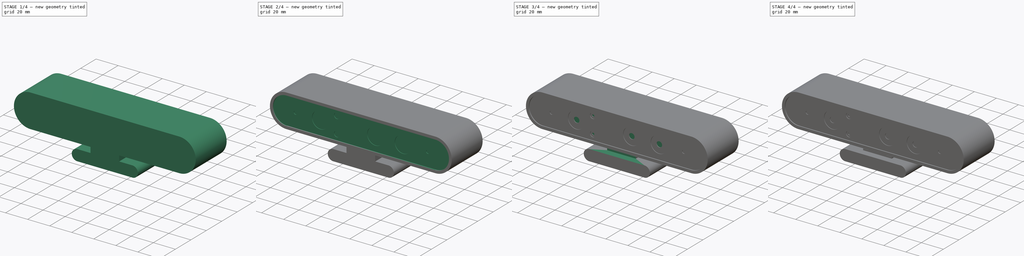
[diagram: build sequence overview — one tinted view per stage of 4, left to right]
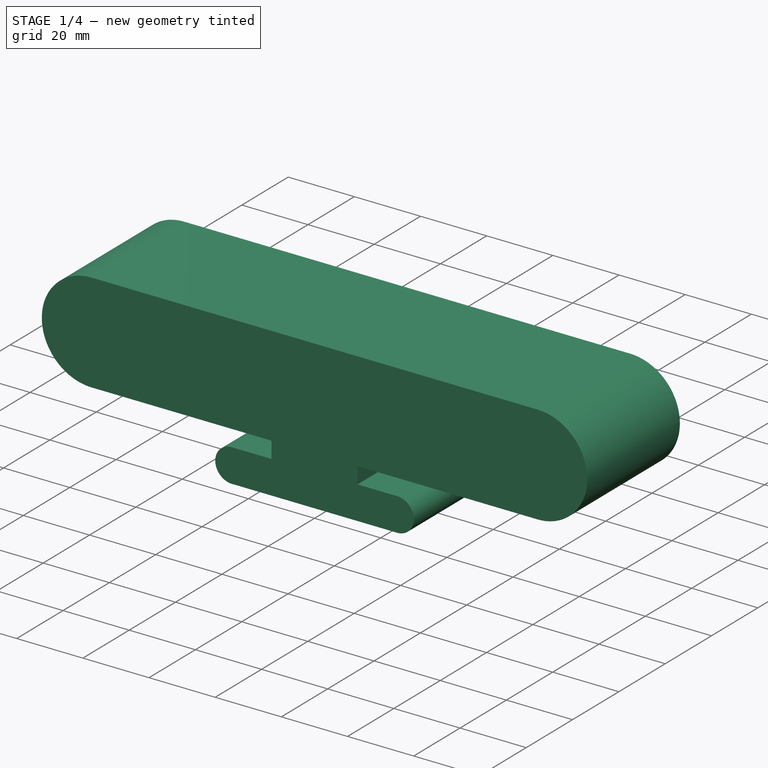
[diagram: stage 1 of 4 — iso view after this stage's code; geometry added in this stage tinted green]
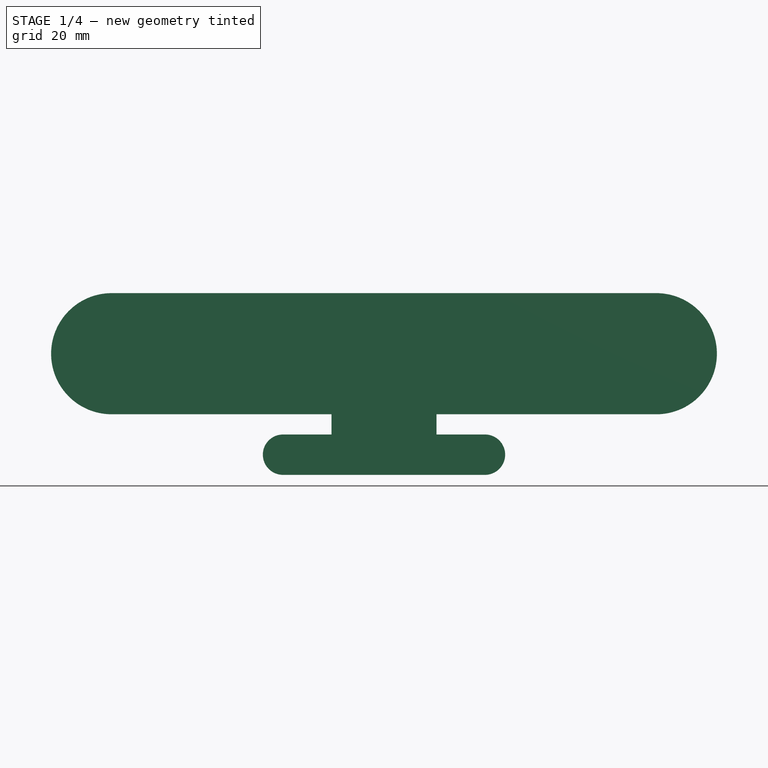
[diagram: stage 1 of 4 — front view after this stage's code; geometry added in this stage tinted green]
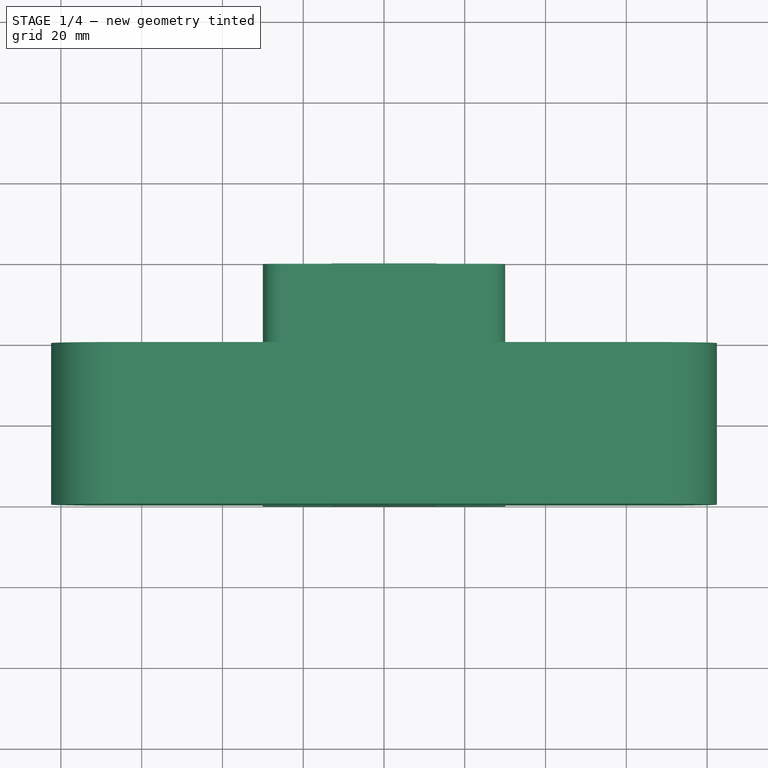
[diagram: stage 1 of 4 — top view after this stage's code; geometry added in this stage tinted green]
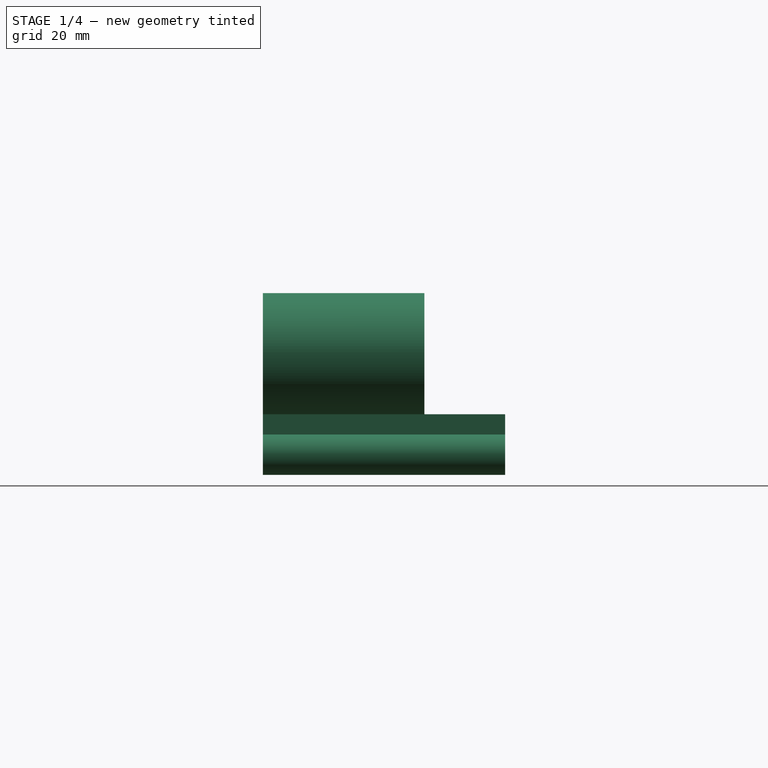
[diagram: stage 1 of 4 — right view after this stage's code; geometry added in this stage tinted green]
FCSTD DOCUMENT  (FreeCAD 1.0R39109 (Git))
Label: astra_s
License: All rights reserved
LicenseURL: http://en.wikipedia.org/wiki/All_rights_reserved
objects: Sketcher::SketchObject×8, PartDesign::Pocket×6, PartDesign::Pad×2, PartDesign::Mirrored×1, PartDesign::Body×1
note: 43 computed .brp shape members not serialized (recipe doc carries the construction recipe); baked Part::Feature solids carry a one-line shape summary decoded from their .brp

FEATURE [Sketcher::SketchObject] Sketch
  ArcFitTolerance = 1e-06
  AttachmentSupport = -> [XZ_Plane]
  FullyConstrained = true
  MakeInternals = false
  MapMode = 5
  Placement = pos=(0,0,0) rot=(1,0,0;1.5708rad)
  sketch-geometry (6):
    g0: ArcOfCircle CenterX=-67.425 CenterY=-7e-16 CenterZ=0 NormalX=0 NormalY=0 NormalZ=1 AngleXU=0 Radius=15 StartAngle=1.5708 EndAngle=4.71239
    g1: ArcOfCircle CenterX=67.425 CenterY=7e-16 CenterZ=0 NormalX=0 NormalY=0 NormalZ=1 AngleXU=0 Radius=15 StartAngle=4.71239 EndAngle=7.85398
    g2: LineSegment StartX=-67.425 StartY=15 StartZ=0 EndX=67.425 EndY=15 EndZ=0
    g3: LineSegment StartX=-67.425 StartY=-15 StartZ=0 EndX=67.425 EndY=-15 EndZ=0
    g4: GeomPoint X=-82.425 Y=-7e-16 Z=0
    g5: GeomPoint X=82.425 Y=-7e-16 Z=0
  constraints (13):
    c: Tangent(g0,g2) = 1.5708
    c: Tangent(g0,g3) = -1.5708
    c: Tangent(g1,g2) = 1.5708
    c: Tangent(g1,g3) = -1.5708
    c: Equal(g0,g1)
    c: Horizontal(g3)
    c: PointOnObject(g4,g0)
    c: PointOnObject(g5,g1)
    c: DistanceX(g4,g5) = 164.85
    c: Symmetric(g1,g0,g-1)
    c: DistanceY(g1,g1) = 30
    c: Horizontal(g5,g4)
    c: Horizontal(g4,g0)
FEATURE [PartDesign::Pad] Pad  label="CamPad"
  Direction = (0,-1,2e-16)
  Length = 20
  Length2 = 20
  Placement = pos=(0,0,0) rot=(1,0,0;1.5708rad)
  Profile = -> Sketch
  ReferenceAxis = -> Sketch [N_Axis]
  Refine = true
  Suppressed = false
  Type = 4
FEATURE [Sketcher::SketchObject] Sketch001
  ArcFitTolerance = 1e-06
  AttachmentSupport = -> [XZ_Plane]
  ExternalGeometry = -> [Pad]
  FullyConstrained = true
  MakeInternals = false
  MapMode = 5
  Placement = pos=(0,0,0) rot=(1,0,0;1.5708rad)
  sketch-geometry (20):
    g0: LineSegment StartX=-13 StartY=-15 StartZ=0 EndX=-13 EndY=-20 EndZ=0
    g1: LineSegment [constr] StartX=-13 StartY=-20 StartZ=0 EndX=-8 EndY=-20 EndZ=0
    g2: LineSegment [constr] StartX=-8 StartY=-20 StartZ=0 EndX=-8 EndY=-15 EndZ=0
    g3: LineSegment [constr] StartX=-8 StartY=-15 StartZ=0 EndX=-13 EndY=-15 EndZ=0
    g4: LineSegment [constr] StartX=8 StartY=-15 StartZ=0 EndX=8 EndY=-20 EndZ=0
    g5: LineSegment [constr] StartX=8 StartY=-20 StartZ=0 EndX=13 EndY=-20 EndZ=0
    g6: LineSegment StartX=13 StartY=-20 StartZ=0 EndX=13 EndY=-15 EndZ=0
    g7: LineSegment [constr] StartX=13 StartY=-15 StartZ=0 EndX=8 EndY=-15 EndZ=0
    g8: ArcOfCircle CenterX=-25 CenterY=-25 CenterZ=0 NormalX=0 NormalY=0 NormalZ=1 AngleXU=0 Radius=5 StartAngle=1.5708 EndAngle=4.71239
    g9: ArcOfCircle CenterX=25 CenterY=-25 CenterZ=0 NormalX=0 NormalY=0 NormalZ=1 AngleXU=0 Radius=5 StartAngle=4.71239 EndAngle=7.85398
    g10: LineSegment [constr] StartX=-25 StartY=-20 StartZ=0 EndX=25 EndY=-20 EndZ=0
    g11: LineSegment StartX=-25 StartY=-30 StartZ=0 EndX=25 EndY=-30 EndZ=0
    g12: GeomPoint X=20 Y=-25 Z=0
    g13: GeomPoint X=-20 Y=-25 Z=0
    g14: LineSegment StartX=-25 StartY=-20 StartZ=0 EndX=-13 EndY=-20 EndZ=0
    g15: LineSegment [constr] StartX=-8 StartY=-20 StartZ=0 EndX=8 EndY=-20 EndZ=0
    g16: LineSegment StartX=13 StartY=-20 StartZ=0 EndX=25 EndY=-20 EndZ=0
    g17: LineSegment StartX=-13 StartY=-15 StartZ=0 EndX=13 EndY=-15 EndZ=0
    g18: GeomPoint X=-30 Y=-25 Z=0
    g19: GeomPoint X=30 Y=-25 Z=0
  constraints (47):
    c: Coincident(g0,g1)
    c: Coincident(g1,g2)
    c: Coincident(g2,g3)
    c: Coincident(g3,g0)
    c: Vertical(g0)
    c: Vertical(g2)
    c: Horizontal(g1)
    c: Horizontal(g3)
    c: PointOnObject(g0,g-3)
    c: Coincident(g4,g5)
    c: Coincident(g5,g6)
    c: Coincident(g6,g7)
    c: Coincident(g7,g4)
    c: Vertical(g4)
    c: Vertical(g6)
    c: Horizontal(g5)
    c: Horizontal(g7)
    c: Tangent(g8,g10) = 1.5708
    c: Tangent(g8,g11) = -1.5708
    c: Tangent(g9,g10) = 1.5708
    c: Tangent(g9,g11) = -1.5708
    c: Equal(g8,g9)
    c: PointOnObject(g4,g10)
    c: Equal(g4,g7)
    c: Equal(g7,g3)
    c: Symmetric(g2,g4,g-2)
    c: PointOnObject(g12,g9)
    c: PointOnObject(g13,g8)
    c: Horizontal(g13,g8)
    c: Horizontal(g8,g12)
    c: DistanceX(g13,g12) = 40
    c: Tangent(g8,g14) = 1.5708
    c: Coincident(g1,g15)
    c: Coincident(g15,g4)
    c: Coincident(g5,g16)
    c: Coincident(g16,g9)
    c: Coincident(g0,g14)
    c: DistanceY(g0,g0) = 5
    c: Symmetric(g9,g8,g-2)
    c: Coincident(g17,g0)
    c: Coincident(g17,g6)
    c: PointOnObject(g18,g8)
    c: PointOnObject(g19,g9)
    c: Horizontal(g19,g18)
    c: Horizontal(g18,g8)
    c: DistanceX(g18,g19) = 60
    c: DistanceX(g0,g6) = 26
FEATURE [PartDesign::Pad] Pad001  label="BasePad"
  BaseFeature = -> Pad
  Direction = (0,-1,2e-16)
  Length = 20
  Length2 = 40
  Placement = pos=(0,0,0) rot=(1,0,0;1.5708rad)
  Profile = -> Sketch001
  ReferenceAxis = -> Sketch001 [N_Axis]
  Refine = true
  Suppressed = false
  Type = 4
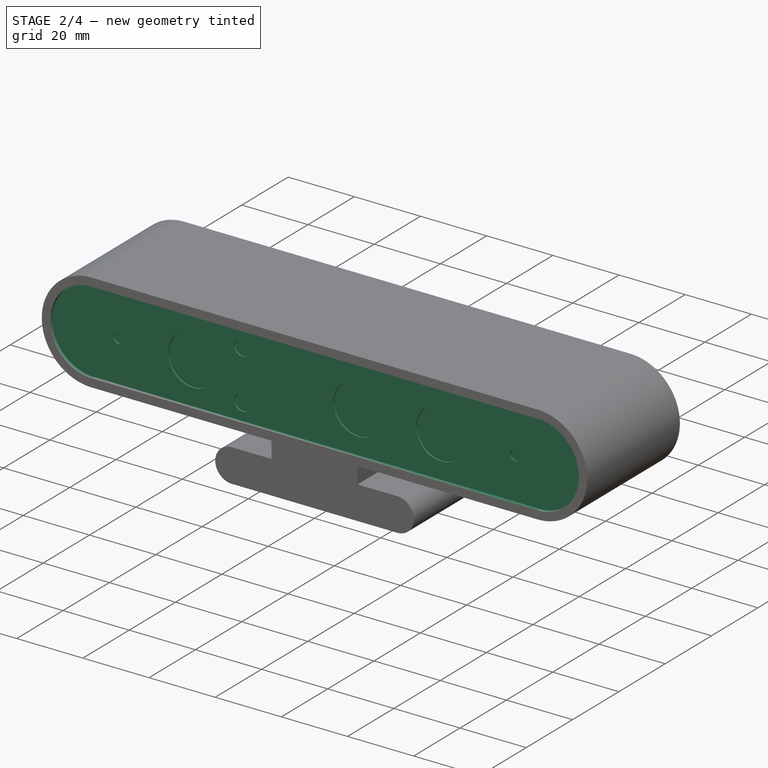
[diagram: stage 2 of 4 — iso view after this stage's code; geometry added in this stage tinted green]
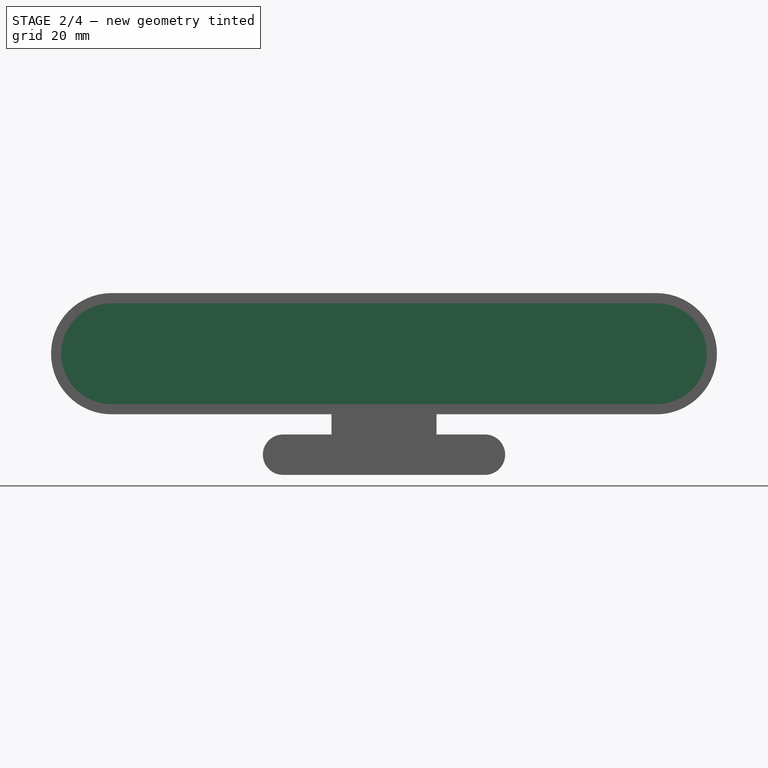
[diagram: stage 2 of 4 — front view after this stage's code; geometry added in this stage tinted green]
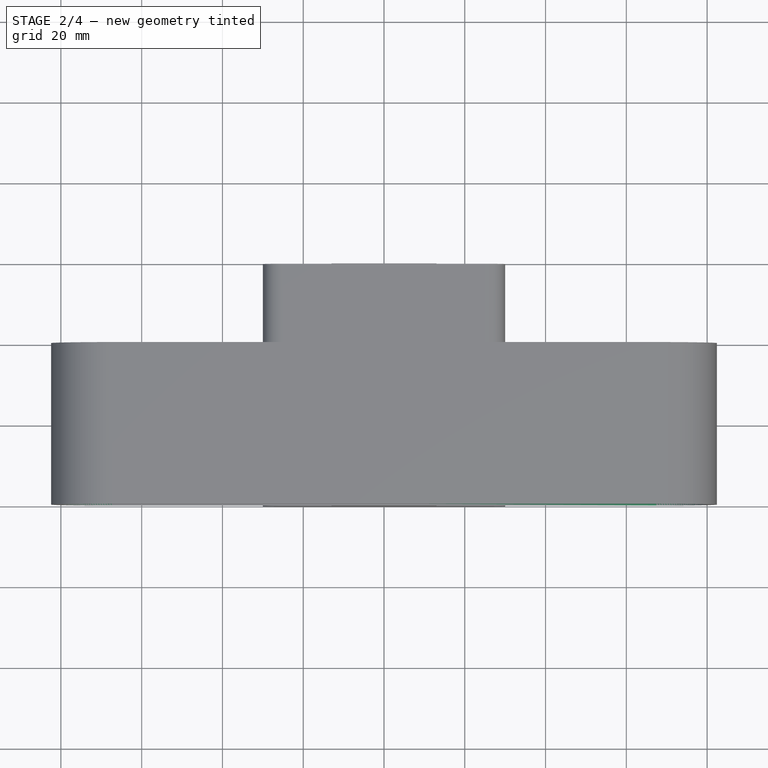
[diagram: stage 2 of 4 — top view after this stage's code; geometry added in this stage tinted green]
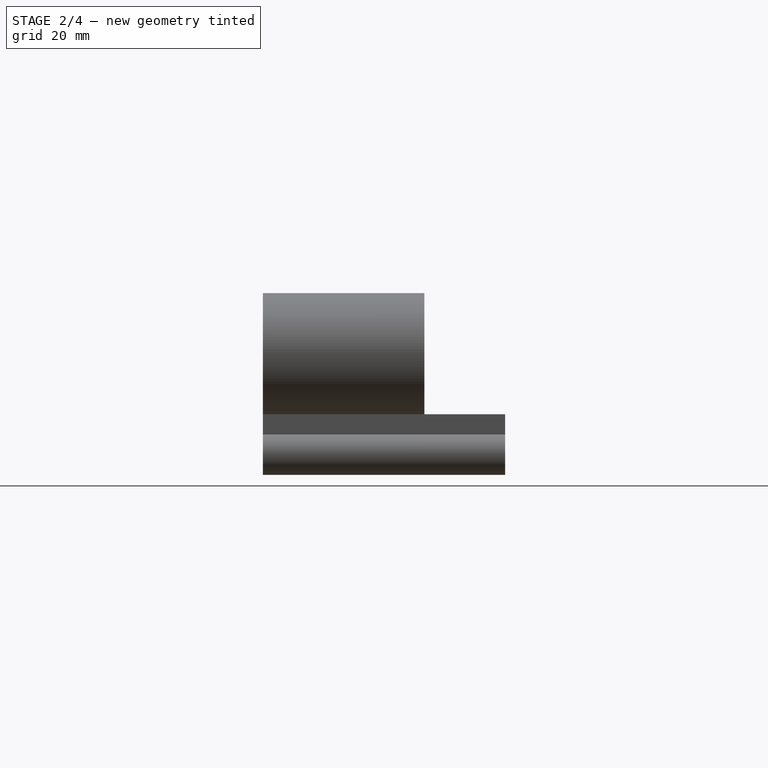
[diagram: stage 2 of 4 — right view after this stage's code; geometry added in this stage tinted green]
FEATURE [Sketcher::SketchObject] Sketch002
  ArcFitTolerance = 1e-06
  AttachmentSupport = -> [Pad001]
  ExternalGeometry = -> [Pad001]
  FullyConstrained = false
  MakeInternals = false
  MapMode = 5
  Placement = pos=(0,-20,9.2e-15) rot=(1,0,0;1.5708rad)
  sketch-geometry (6):
    g0: ArcOfCircle CenterX=-67.425 CenterY=-1e-16 CenterZ=0 NormalX=0 NormalY=0 NormalZ=1 AngleXU=0 Radius=12.5 StartAngle=1.5708 EndAngle=4.71239
    g1: ArcOfCircle CenterX=67.425 CenterY=1e-16 CenterZ=0 NormalX=0 NormalY=0 NormalZ=1 AngleXU=0 Radius=12.5 StartAngle=4.71239 EndAngle=7.85398
    g2: LineSegment StartX=-67.425 StartY=12.5 StartZ=0 EndX=67.425 EndY=12.5 EndZ=0
    g3: LineSegment StartX=-67.425 StartY=-12.5 StartZ=0 EndX=67.425 EndY=-12.5 EndZ=0
    g4: GeomPoint X=79.925 Y=-1.33038e-06 Z=0
    g5: GeomPoint X=-79.925 Y=-1.33038e-06 Z=0
  constraints (11):
    c: Tangent(g0,g2) = 1.5708
    c: Tangent(g0,g3) = -1.5708
    c: Tangent(g1,g2) = 1.5708
    c: Tangent(g1,g3) = -1.5708
    c: Equal(g0,g1)
    c: Horizontal(g3)
    c: DistanceY(g1,g1) = 25
    c: Symmetric(g1,g0,g-1)
    c: PointOnObject(g4,g1)
    c: PointOnObject(g5,g0)
    c: DistanceX(g5,g4) = 159.85
FEATURE [PartDesign::Pocket] Pocket  label="InternalContourPocket"
  BaseFeature = -> Pad001
  Direction = (0,1,-2e-16)
  Length = 1
  Length2 = 5
  Placement = pos=(0,0,0) rot=(1,0,0;1.5708rad)
  Profile = -> Sketch002
  ReferenceAxis = -> Sketch002 [N_Axis]
  Refine = true
  Suppressed = false
  Type = 0
FEATURE [Sketcher::SketchObject] Sketch003
  ArcFitTolerance = 1e-06
  AttachmentSupport = -> [Pocket]
  FullyConstrained = true
  MakeInternals = false
  MapMode = 5
  Placement = pos=(0,-19,5.1e-15) rot=(1,0,0;1.5708rad)
  sketch-geometry (7):
    g0: Circle CenterX=-37.5 CenterY=0 CenterZ=0 NormalX=0 NormalY=0 NormalZ=1 AngleXU=0 Radius=7.5
    g1: Circle CenterX=37.5 CenterY=0 CenterZ=0 NormalX=0 NormalY=0 NormalZ=1 AngleXU=0 Radius=7.5
    g2: Circle CenterX=12.5 CenterY=0 CenterZ=0 NormalX=0 NormalY=0 NormalZ=1 AngleXU=0 Radius=7.5
    g3: Circle CenterX=-22.5 CenterY=7.5 CenterZ=0 NormalX=0 NormalY=0 NormalZ=1 AngleXU=0 Radius=2.5
    g4: Circle CenterX=-22.5 CenterY=-7.5 CenterZ=0 NormalX=0 NormalY=0 NormalZ=1 AngleXU=0 Radius=2.5
    g5: Circle CenterX=60 CenterY=0 CenterZ=0 NormalX=0 NormalY=0 NormalZ=1 AngleXU=0 Radius=1.5
    g6: Circle CenterX=-60 CenterY=0 CenterZ=0 NormalX=0 NormalY=0 NormalZ=1 AngleXU=0 Radius=1.5
  constraints (18):
    c: PointOnObject(g0,g-1)
    c: PointOnObject(g2,g-1)
    c: Equal(g0,g2)
    c: Equal(g2,g1)
    c: Equal(g4,g3)
    c: Radius(g0) = 7.5
    c: Radius(g3) = 2.5
    c: DistanceX(g0,g1) = 75
    c: DistanceX(g2,g1) = 25
    c: DistanceX(g0,g4) = 15
    c: Symmetric(g1,g0,g-1)
    c: Symmetric(g4,g3,g-1)
    c: DistanceY(g4,g3) = 15
    c: PointOnObject(g5,g-1)
    c: Equal(g6,g5)
    c: Radius(g5) = 1.5
    c: Symmetric(g5,g6,g-1)
    c: DistanceX(g6,g5) = 120
FEATURE [PartDesign::Pocket] Pocket001  label="LensPocket"
  BaseFeature = -> Pocket
  Direction = (0,1,-2e-16)
  Length = 0.5
  Length2 = 5
  Placement = pos=(0,0,0) rot=(1,0,0;1.5708rad)
  Profile = -> Sketch003
  ReferenceAxis = -> Sketch003 [N_Axis]
  Refine = true
  Suppressed = false
  Type = 0
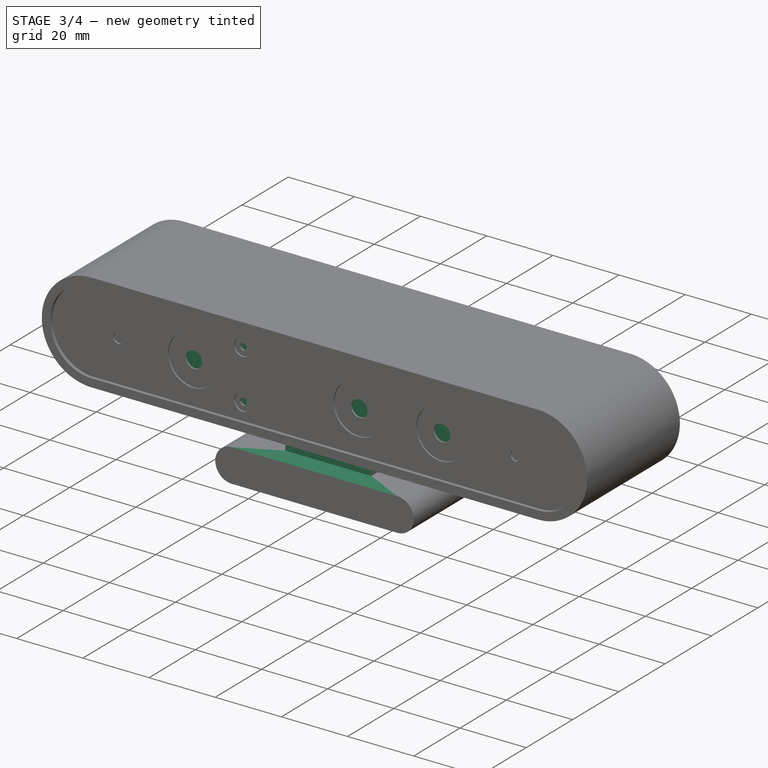
[diagram: stage 3 of 4 — iso view after this stage's code; geometry added in this stage tinted green]
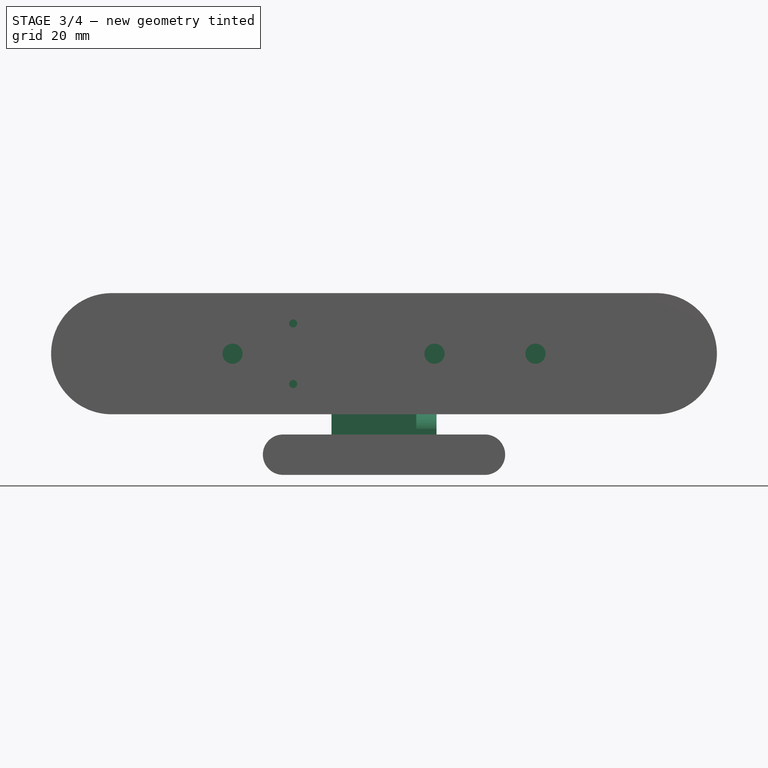
[diagram: stage 3 of 4 — front view after this stage's code; geometry added in this stage tinted green]
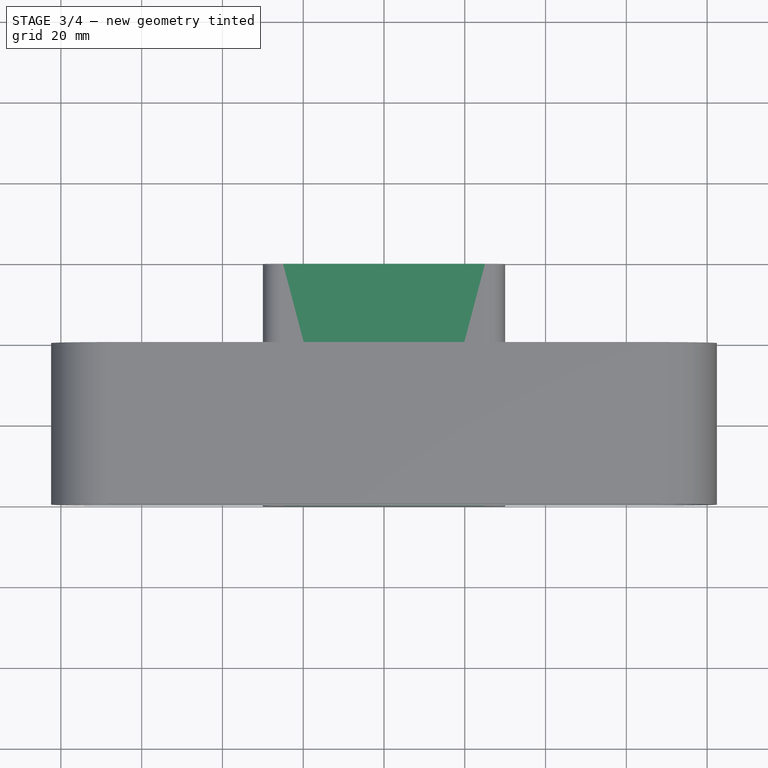
[diagram: stage 3 of 4 — top view after this stage's code; geometry added in this stage tinted green]
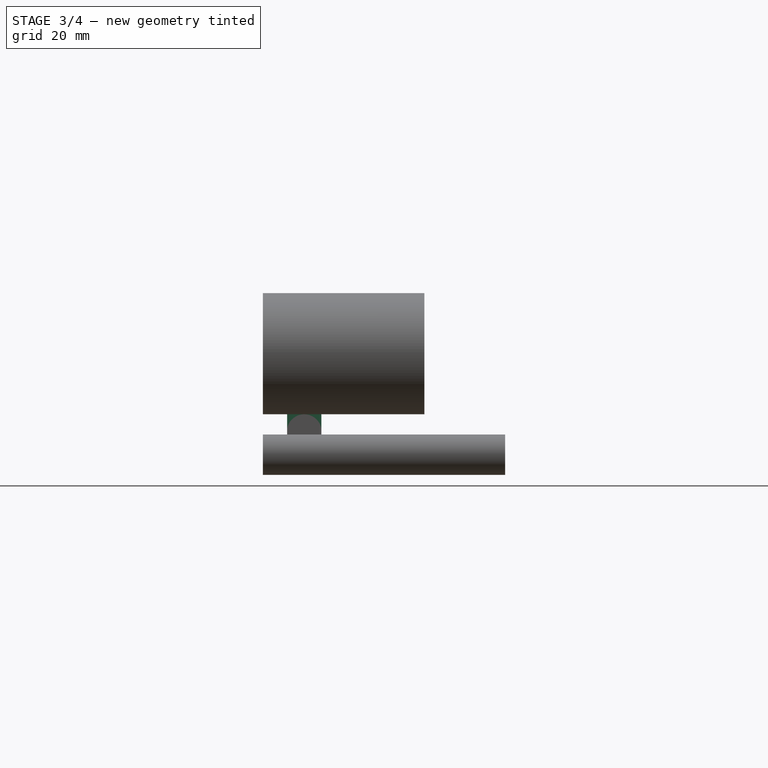
[diagram: stage 3 of 4 — right view after this stage's code; geometry added in this stage tinted green]
FEATURE [Sketcher::SketchObject] Sketch004
  ArcFitTolerance = 1e-06
  AttachmentSupport = -> [Pocket001]
  ExternalGeometry = -> [Pocket001]
  FullyConstrained = true
  MakeInternals = false
  MapMode = 5
  Placement = pos=(0,-18.5,0) rot=(1,0,0;1.5708rad)
  sketch-geometry (5):
    g0: Circle CenterX=-37.5 CenterY=0 CenterZ=0 NormalX=0 NormalY=0 NormalZ=1 AngleXU=0 Radius=2.5
    g1: Circle CenterX=12.5 CenterY=0 CenterZ=0 NormalX=0 NormalY=0 NormalZ=1 AngleXU=0 Radius=2.5
    g2: Circle CenterX=37.5 CenterY=0 CenterZ=0 NormalX=0 NormalY=0 NormalZ=1 AngleXU=0 Radius=2.5
    g3: Circle CenterX=-22.5 CenterY=7.5 CenterZ=0 NormalX=0 NormalY=0 NormalZ=1 AngleXU=0 Radius=1
    g4: Circle CenterX=-22.5 CenterY=-7.5 CenterZ=0 NormalX=0 NormalY=0 NormalZ=1 AngleXU=0 Radius=1
  constraints (10):
    c: Coincident(g0,g-3)
    c: Equal(g0,g-4)
    c: Coincident(g1,g-6)
    c: Coincident(g2,g-7)
    c: Equal(g2,g1)
    c: Equal(g1,g0)
    c: Coincident(g3,g-4)
    c: Coincident(g4,g-5)
    c: Equal(g4,g3)
    c: Radius(g3) = 1
FEATURE [PartDesign::Pocket] Pocket002  label="Lens2Pocket"
  BaseFeature = -> Pocket001
  Direction = (0,1,-2e-16)
  Length = 0.5
  Length2 = 5
  Placement = pos=(0,0,0) rot=(1,0,0;1.5708rad)
  Profile = -> Sketch004
  ReferenceAxis = -> Sketch004 [N_Axis]
  Refine = true
  Suppressed = false
  Type = 0
FEATURE [Sketcher::SketchObject] Sketch005
  ArcFitTolerance = 1e-06
  AttachmentSupport = -> [Pocket002]
  ExternalGeometry = -> [Pocket002]
  FullyConstrained = true
  MakeInternals = false
  MapMode = 5
  Placement = pos=(13,0,0) rot=(0.707107,0,0.707107;3.14159rad)
  sketch-geometry (8):
    g0: LineSegment StartX=-20 StartY=20 StartZ=0 EndX=-20 EndY=14 EndZ=0
    g1: LineSegment StartX=-20 StartY=14 StartZ=0 EndX=-15 EndY=14 EndZ=0
    g2: LineSegment StartX=-15 StartY=14 StartZ=0 EndX=-15 EndY=20 EndZ=0
    g3: LineSegment StartX=-15 StartY=20 StartZ=0 EndX=-20 EndY=20 EndZ=0
    g4: LineSegment StartX=-20 StartY=5.5 StartZ=0 EndX=-20 EndY=-40 EndZ=0
    g5: LineSegment StartX=-20 StartY=-40 StartZ=0 EndX=-15 EndY=-40 EndZ=0
    g6: LineSegment StartX=-15 StartY=-40 StartZ=0 EndX=-15 EndY=5.5 EndZ=0
    g7: LineSegment StartX=-15 StartY=5.5 StartZ=0 EndX=-20 EndY=5.5 EndZ=0
  constraints (23):
    c: Coincident(g0,g1)
    c: Coincident(g1,g2)
    c: Coincident(g2,g3)
    c: Coincident(g3,g0)
    c: Vertical(g0)
    c: Vertical(g2)
    c: Horizontal(g1)
    c: Horizontal(g3)
    c: Coincident(g0,g-3)
    c: PointOnObject(g1,g-4)
    c: Coincident(g4,g5)
    c: Coincident(g5,g6)
    c: Coincident(g6,g7)
    c: Coincident(g7,g4)
    c: Vertical(g4)
    c: Vertical(g6)
    c: Horizontal(g5)
    c: Horizontal(g7)
    c: PointOnObject(g4,g-3)
    c: Vertical(g5,g-4)
    c: Horizontal(g-3,g5)
    c: DistanceY(g6,g1) = 8.5
    c: DistanceY(g2,g2) = 6
FEATURE [PartDesign::Pocket] Pocket003  label="BasePocket"
  BaseFeature = -> Pocket002
  Direction = (-1,0,2e-16)
  Length = 5
  Length2 = 5
  Placement = pos=(0,0,0) rot=(1,0,0;1.5708rad)
  Profile = -> Sketch005
  ReferenceAxis = -> Sketch005 [N_Axis]
  Refine = true
  Suppressed = false
  Type = 1
FEATURE [Sketcher::SketchObject] Sketch006
  ArcFitTolerance = 1e-06
  AttachmentSupport = -> [Pocket003]
  ExternalGeometry = -> [Pocket003]
  FullyConstrained = true
  MakeInternals = false
  MapMode = 5
  Placement = pos=(13,0,0) rot=(0.707107,0,0.707107;3.14159rad)
  sketch-geometry (7):
    g0: LineSegment [constr] StartX=-20 StartY=14 StartZ=0 EndX=-20 EndY=5.5 EndZ=0
    g1: ArcOfCircle CenterX=-19.3063 CenterY=9.75 CenterZ=0 NormalX=0 NormalY=0 NormalZ=1 AngleXU=0 Radius=4.30625 StartAngle=4.55058 EndAngle=8.01579
    g2: LineSegment StartX=-20 StartY=14 StartZ=0 EndX=-20 EndY=14.5 EndZ=0
    g3: LineSegment StartX=-20 StartY=14.5 StartZ=0 EndX=-15 EndY=14.5 EndZ=0
    g4: LineSegment StartX=-15 StartY=14.5 StartZ=0 EndX=-15 EndY=5 EndZ=0
    g5: LineSegment StartX=-15 StartY=5 StartZ=0 EndX=-20 EndY=5 EndZ=0
    g6: LineSegment StartX=-20 StartY=5 StartZ=0 EndX=-20 EndY=5.5 EndZ=0
  constraints (19):
    c: Coincident(g0,g-3)
    c: Coincident(g0,g-4)
    c: Coincident(g1,g0)
    c: Coincident(g1,g0)
    c: Tangent(g-5,g1)
    c: Coincident(g2,g0)
    c: Vertical(g2)
    c: Coincident(g2,g3)
    c: Horizontal(g3)
    c: Coincident(g3,g4)
    c: Vertical(g4)
    c: Tangent(g4,g1)
    c: Coincident(g4,g5)
    c: Horizontal(g5)
    c: Coincident(g5,g6)
    c: Coincident(g6,g0)
    c: Vertical(g6)
    c: Equal(g2,g6)
    c: DistanceY(g6,g6) = 0.5
FEATURE [PartDesign::Pocket] Pocket004  label="Base2Pocket"
  BaseFeature = -> Pocket003
  Direction = (-1,0,2e-16)
  Length = 5
  Length2 = 5
  Placement = pos=(0,0,0) rot=(1,0,0;1.5708rad)
  Profile = -> Sketch006
  ReferenceAxis = -> Sketch006 [N_Axis]
  Refine = true
  Suppressed = false
  Type = 0
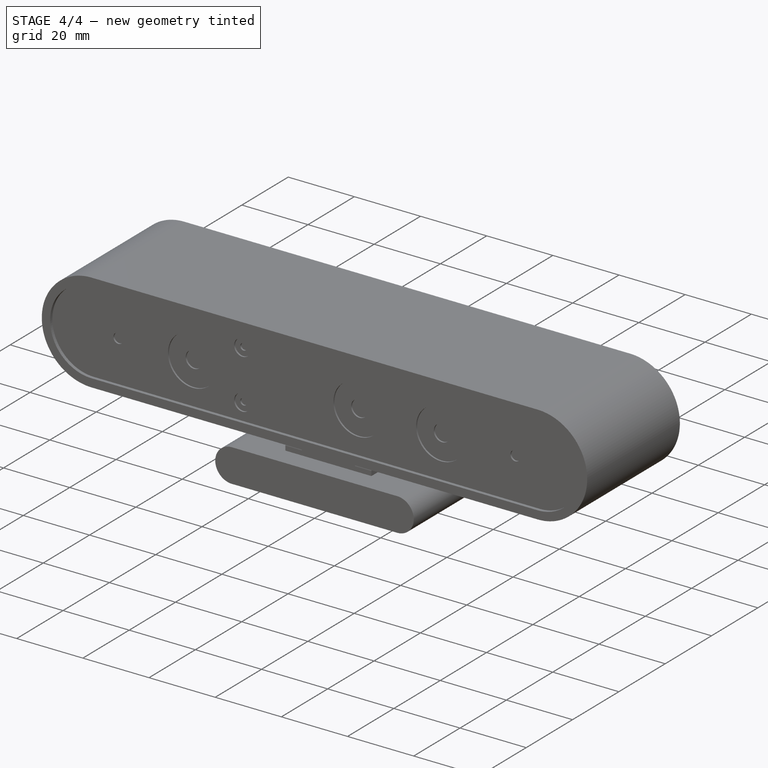
[diagram: stage 4 of 4 — iso view after this stage's code; geometry added in this stage tinted green]
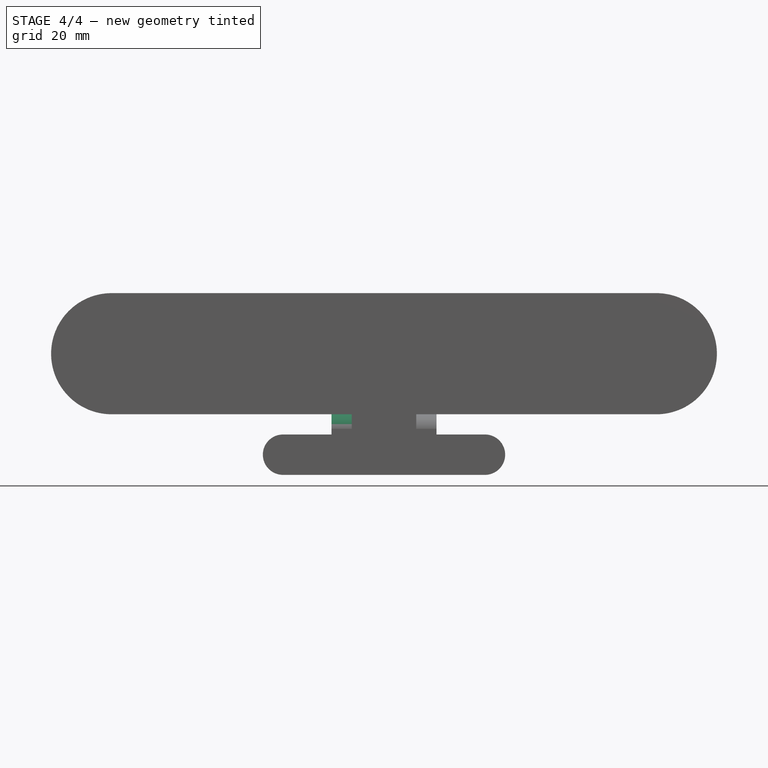
[diagram: stage 4 of 4 — front view after this stage's code; geometry added in this stage tinted green]
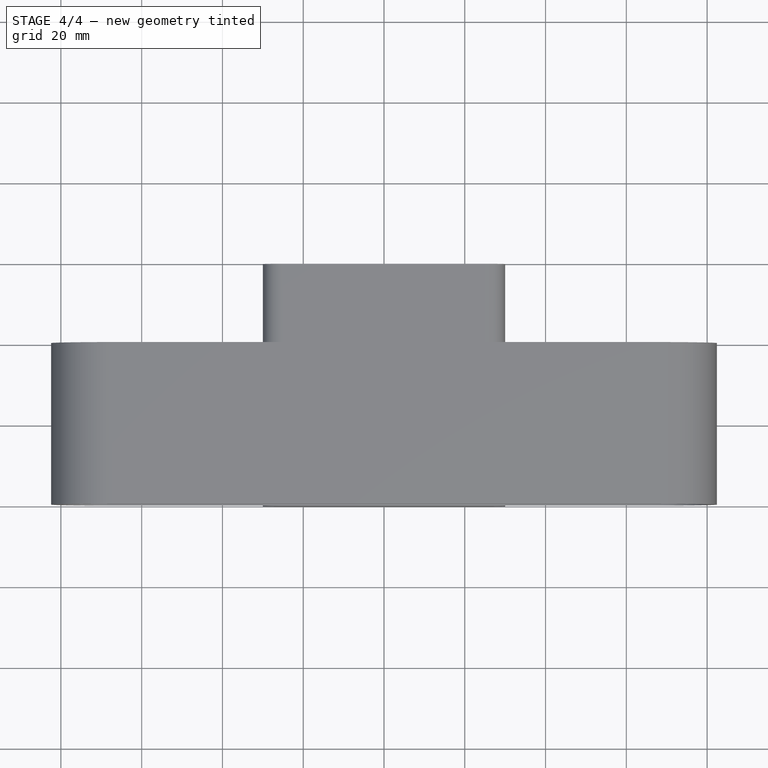
[diagram: stage 4 of 4 — top view after this stage's code; geometry added in this stage tinted green]
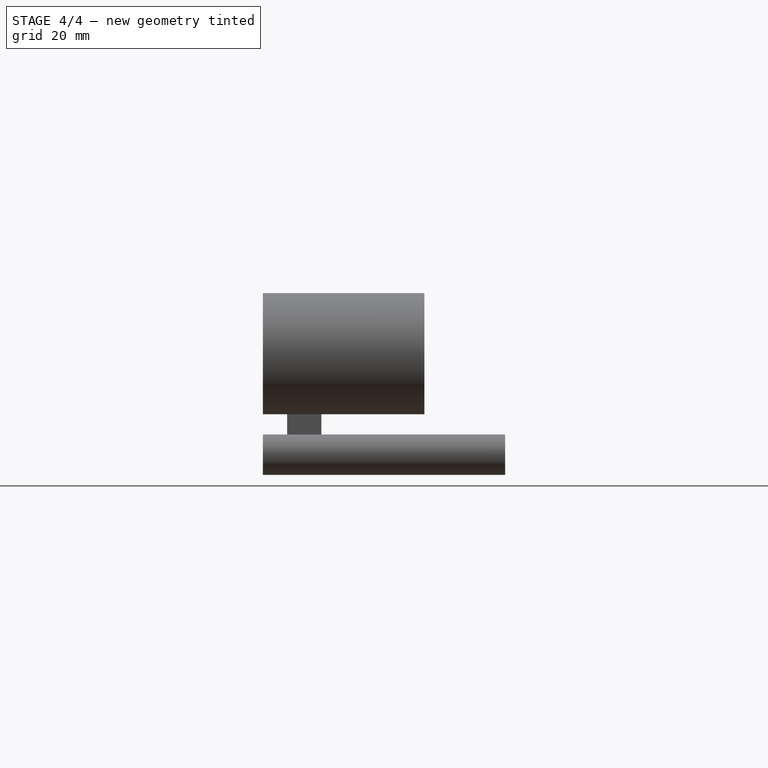
[diagram: stage 4 of 4 — right view after this stage's code; geometry added in this stage tinted green]
FEATURE [PartDesign::Mirrored] Mirrored  label="Base2PocketMirror"
  BaseFeature = -> Pocket004
  MirrorPlane = -> YZ_Plane
  Originals = -> [Pocket004]
  Placement = pos=(0,0,0) rot=(1,0,0;1.5708rad)
  Refine = true
  Suppressed = false
  TransformMode = 0
FEATURE [Sketcher::SketchObject] Sketch007
  ArcFitTolerance = 1e-06
  AttachmentSupport = -> [Mirrored]
  ExternalGeometry = -> [Mirrored]
  FullyConstrained = true
  MakeInternals = false
  MapMode = 5
  Placement = pos=(0,-1.32e-14,-30) rot=(1,0,0;3.14159rad)
  sketch-geometry (2):
    g0: Circle CenterX=0 CenterY=3.175 CenterZ=0 NormalX=0 NormalY=0 NormalZ=1 AngleXU=0 Radius=3.175
    g1: GeomPoint X=0 Y=0 Z=0
  constraints (5):
    c: PointOnObject(g0,g-2)
    c: Radius(g0) = 3.175
    c: PointOnObject(g1,g0)
    c: PointOnObject(g1,g-2)
    c: DistanceY(g1,g-3) = 20
FEATURE [PartDesign::Pocket] Pocket005  label="1/4inchPocket"
  BaseFeature = -> Mirrored
  Direction = (0,0,1)
  Length = 5
  Length2 = 5
  Placement = pos=(0,0,0) rot=(1,0,0;1.5708rad)
  Profile = -> Sketch007
  ReferenceAxis = -> Sketch007 [N_Axis]
  Refine = true
  Suppressed = false
  Type = 0
FEATURE [PartDesign::Body] Body  label="astra_s"
  AllowCompound = false
  Group = -> [Sketch,Pad,Sketch001,Pad001,Sketch002,Pocket,Sketch003,Pocket001,Sketch004,Pocket002,Sketch005,Pocket003,Sketch006,Pocket004,Mirrored,Sketch007,Pocket005]
  Origin = -> Origin
  Tip = -> Pocket005
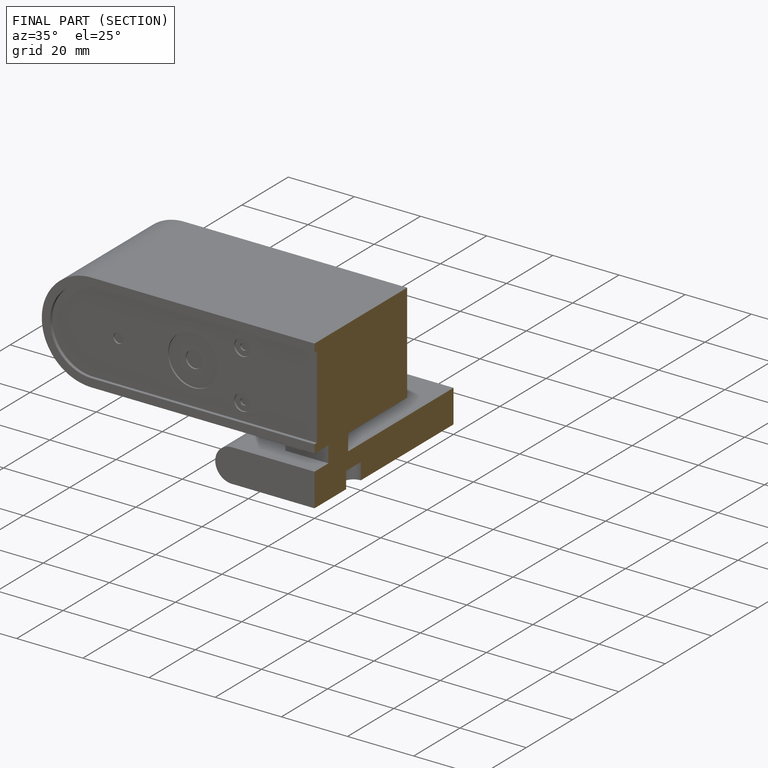
[diagram: finished part — half-section view (interior)]
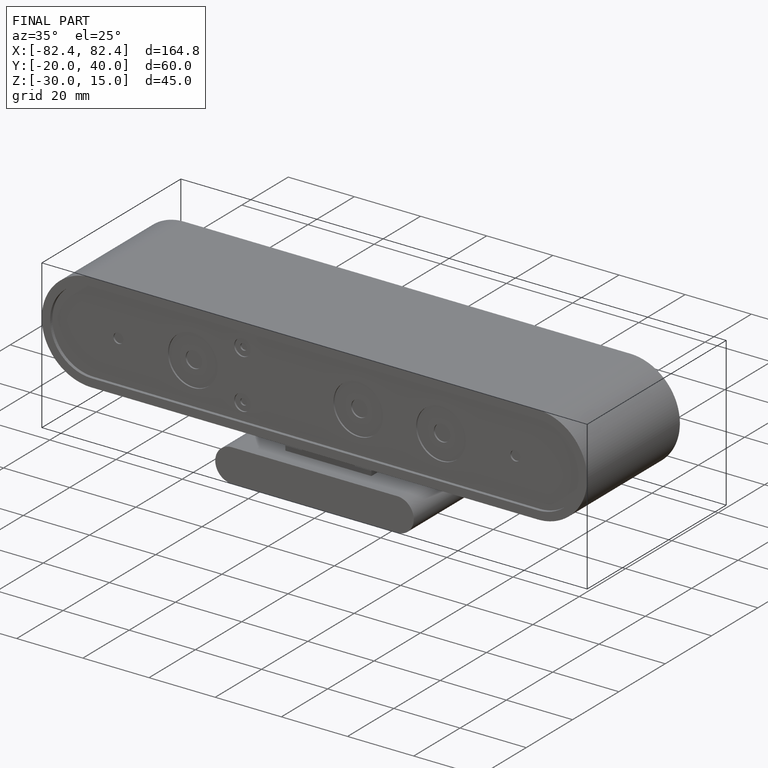
[diagram: finished part — iso view with bounding-box wireframe]
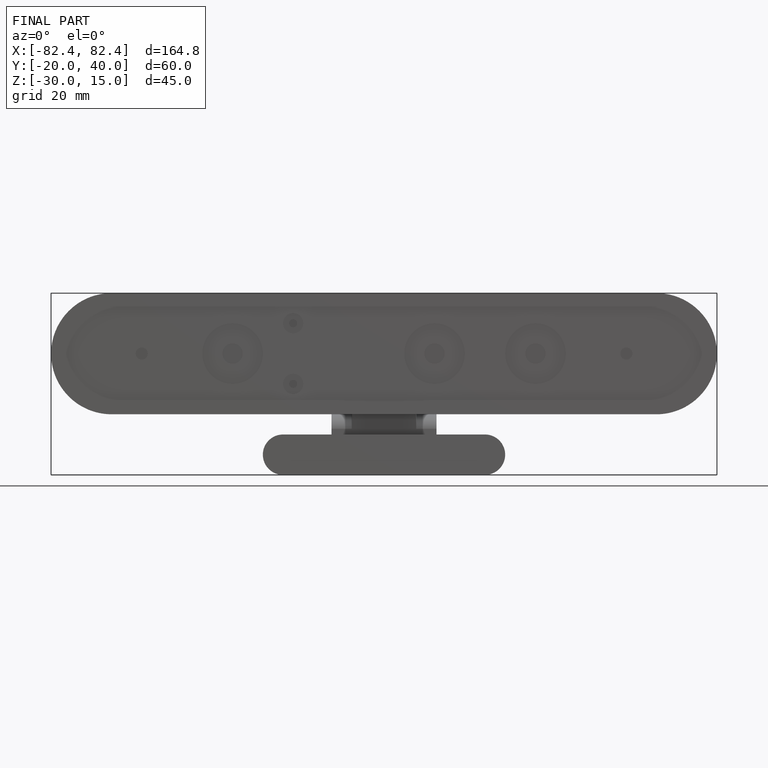
[diagram: finished part — front view with bounding-box wireframe]
